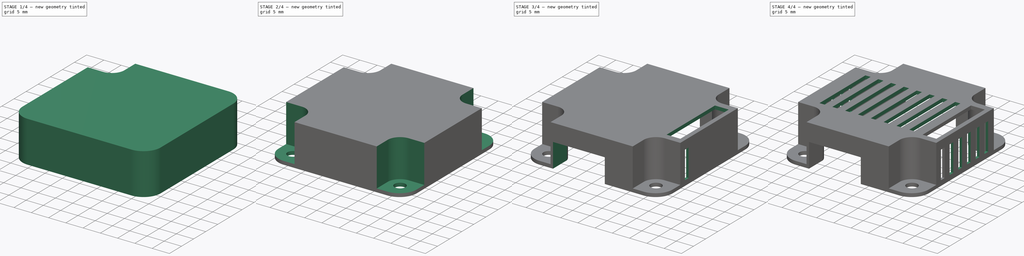
[diagram: build sequence overview — one tinted view per stage of 4, left to right]
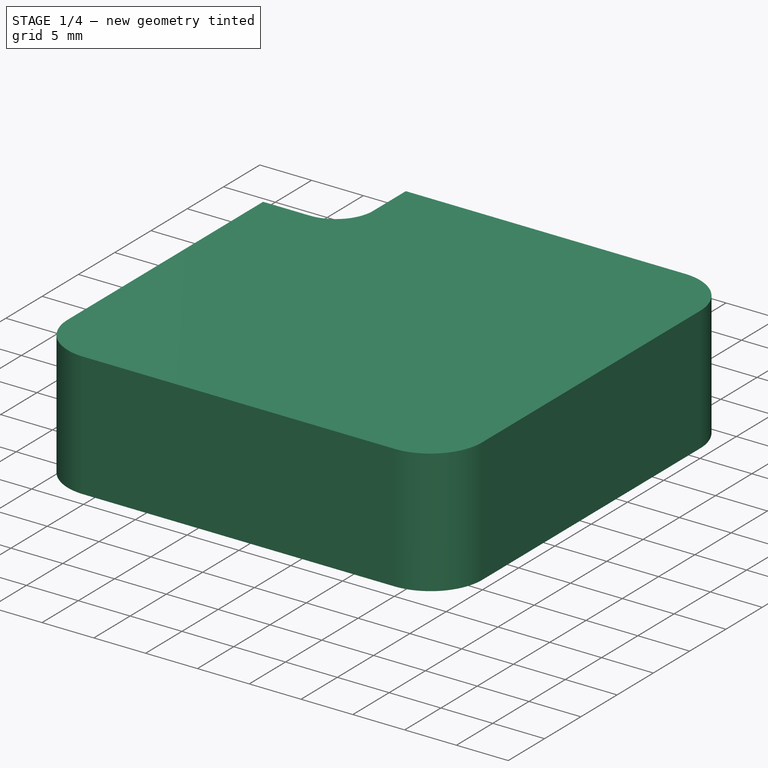
[diagram: stage 1 of 4 — iso view after this stage's code; geometry added in this stage tinted green]
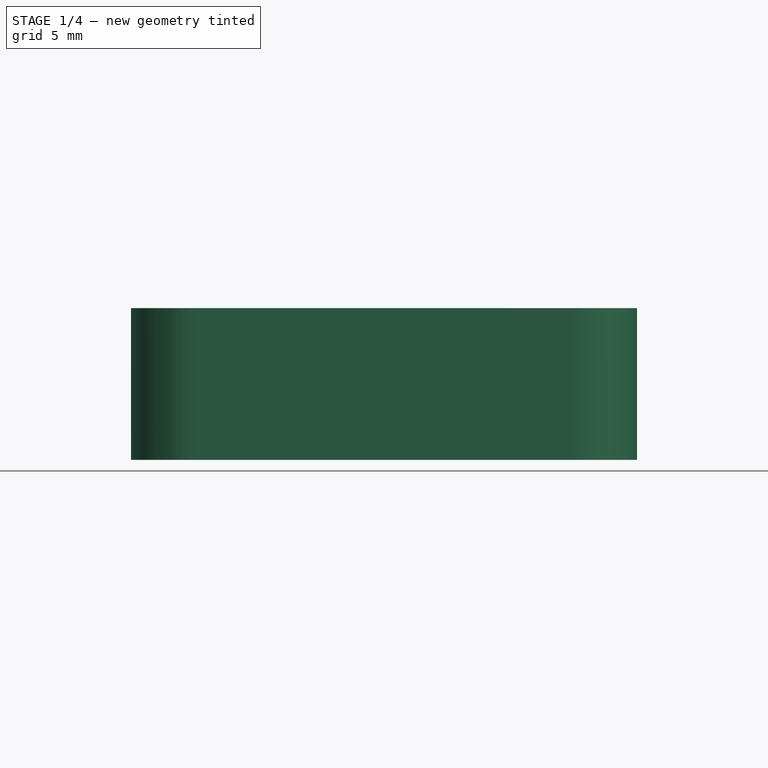
[diagram: stage 1 of 4 — front view after this stage's code; geometry added in this stage tinted green]
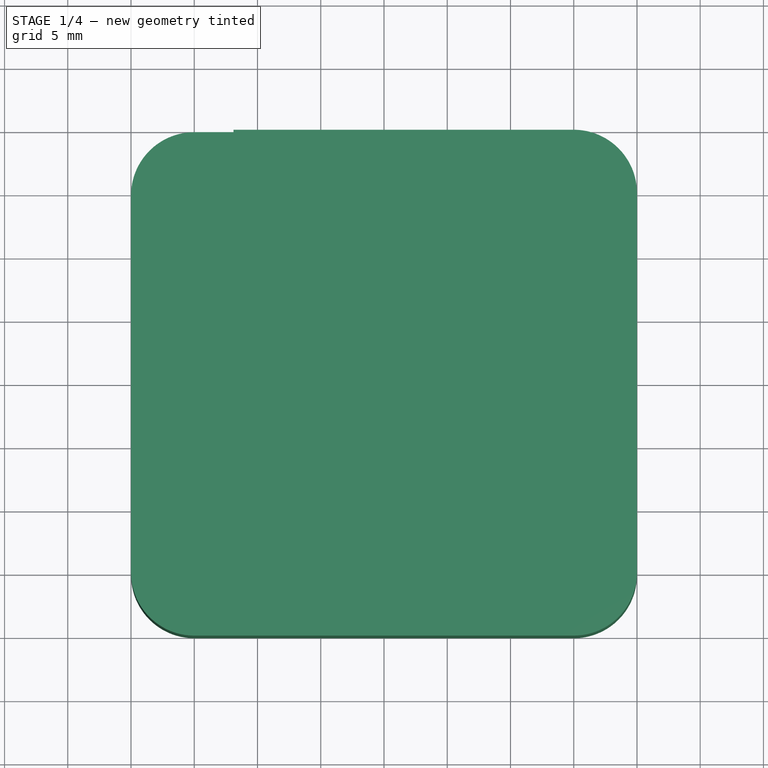
[diagram: stage 1 of 4 — top view after this stage's code; geometry added in this stage tinted green]
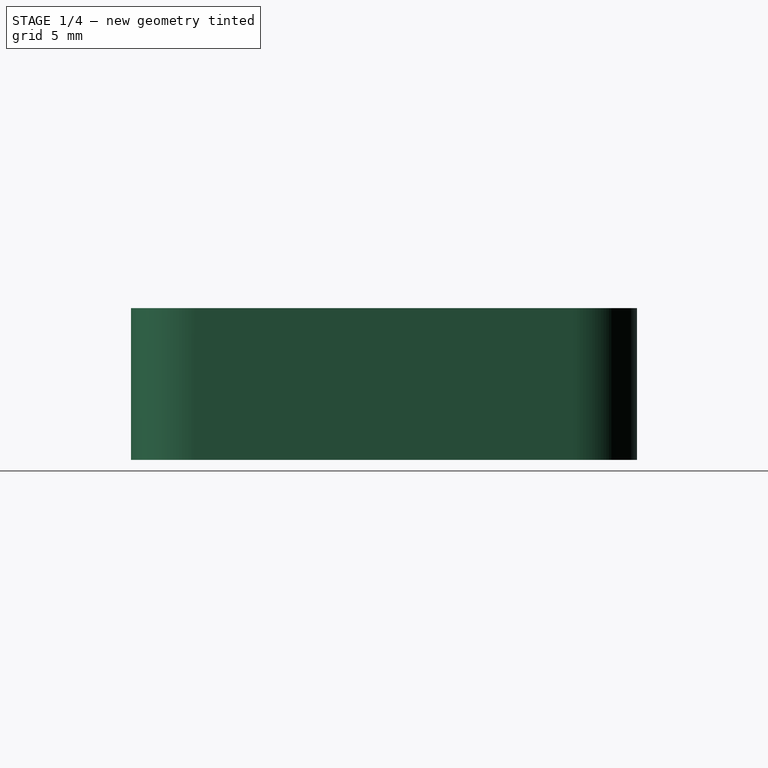
[diagram: stage 1 of 4 — right view after this stage's code; geometry added in this stage tinted green]
FCSTD DOCUMENT  (FreeCAD 0.20R29177 (Git))
Label: shell
License: All rights reserved
LicenseURL: http://en.wikipedia.org/wiki/All_rights_reserved
objects: Sketcher::SketchObject×8, PartDesign::Pocket×7, PartDesign::PolarPattern×2, PartDesign::LinearPattern×2, PartDesign::Pad×1, PartDesign::Body×1
note: 29 computed .brp shape members not serialized (recipe doc carries the construction recipe); baked Part::Feature solids carry a one-line shape summary decoded from their .brp

FEATURE [Sketcher::SketchObject] Sketch
  FullyConstrained = true
  MapMode = 5
  Support = -> [XY_Plane]
  sketch-geometry (10):
    g0: LineSegment StartX=-15 StartY=20 StartZ=0 EndX=15 EndY=20 EndZ=0
    g1: LineSegment StartX=20 StartY=15 StartZ=0 EndX=20 EndY=-15 EndZ=0
    g2: LineSegment StartX=15 StartY=-20 StartZ=0 EndX=-15 EndY=-20 EndZ=0
    g3: LineSegment StartX=-20 StartY=-15 StartZ=0 EndX=-20 EndY=15 EndZ=0
    g4: GeomPoint X=0 Y=20 Z=0
    g5: GeomPoint X=20 Y=0 Z=0
    g6: ArcOfCircle CenterX=-15 CenterY=15 CenterZ=0 NormalX=0 NormalY=0 NormalZ=1 AngleXU=0 Radius=5 StartAngle=1.5708 EndAngle=3.14159
    g7: ArcOfCircle CenterX=15 CenterY=15 CenterZ=0 NormalX=0 NormalY=0 NormalZ=1 AngleXU=0 Radius=5 StartAngle=-2.31e-14 EndAngle=1.5708
    g8: ArcOfCircle CenterX=15 CenterY=-15 CenterZ=0 NormalX=0 NormalY=0 NormalZ=1 AngleXU=0 Radius=5 StartAngle=4.71239 EndAngle=6.28319
    g9: ArcOfCircle CenterX=-15 CenterY=-15 CenterZ=0 NormalX=0 NormalY=0 NormalZ=1 AngleXU=0 Radius=5 StartAngle=3.14159 EndAngle=4.71239
  constraints (22):
    c: Horizontal(g0)
    c: Horizontal(g2)
    c: Vertical(g1)
    c: Vertical(g3)
    c: PointOnObject(g4,g-2)
    c: PointOnObject(g5,g-1)
    c: Tangent(g0,g6) = 1.5708
    c: Tangent(g3,g6) = 1.5708
    c: Tangent(g0,g7) = 1.5708
    c: Tangent(g1,g7) = 1.5708
    c: Tangent(g1,g8) = 1.5708
    c: Tangent(g2,g8) = 1.5708
    c: Tangent(g3,g9) = 1.5708
    c: Tangent(g2,g9) = 1.5708
    c: Equal(g6,g7)
    c: Equal(g7,g8)
    c: Equal(g8,g9)
    c: Symmetric(g0,g0,g4)
    c: Symmetric(g1,g1,g5)
    c: Distance(g4,g2) = 40
    c: Distance(g5,g3) = 40
    c: Radius(g6) = 5
FEATURE [PartDesign::Pad] Pad  label="outer"
  Direction = (0,0,1)
  Length = 12
  Length2 = 10
  Profile = -> Sketch
  ReferenceAxis = -> Sketch [N_Axis]
  Type = 0
FEATURE [Sketcher::SketchObject] Sketch001
  ExternalGeometry = -> [Pad]
  FullyConstrained = true
  MapMode = 5
  Placement = pos=(0,0,0) rot=(1,0,0;3.14159rad)
  Support = -> [Pad]
  sketch-geometry (16):
    g0: ArcOfCircle CenterX=-15.5 CenterY=15.5 CenterZ=0 NormalX=0 NormalY=0 NormalZ=1 AngleXU=0 Radius=4.5 StartAngle=4.71239 EndAngle=6.28319
    g1: ArcOfCircle CenterX=15.5 CenterY=15.5 CenterZ=0 NormalX=0 NormalY=0 NormalZ=1 AngleXU=0 Radius=4.5 StartAngle=3.14159 EndAngle=4.71239
    g2: ArcOfCircle CenterX=-15.5 CenterY=-15.5 CenterZ=0 NormalX=0 NormalY=0 NormalZ=1 AngleXU=0 Radius=4.5 StartAngle=0 EndAngle=1.5708
    g3: ArcOfCircle CenterX=15.5 CenterY=-15.5 CenterZ=0 NormalX=0 NormalY=0 NormalZ=1 AngleXU=0 Radius=4.5 StartAngle=1.5708 EndAngle=3.14159
    g4: LineSegment StartX=-11 StartY=19.3 StartZ=0 EndX=11 EndY=19.3 EndZ=0
    g5: LineSegment StartX=11 StartY=19.3 StartZ=0 EndX=11 EndY=15.5 EndZ=0
    g6: LineSegment StartX=-19.3 StartY=11 StartZ=0 EndX=-15.5 EndY=11 EndZ=0
    g7: LineSegment StartX=19.3 StartY=-11 StartZ=0 EndX=15.5 EndY=-11 EndZ=0
    g8: LineSegment StartX=-11 StartY=-19.3 StartZ=0 EndX=11 EndY=-19.3 EndZ=0
    g9: LineSegment StartX=11 StartY=-15.5 StartZ=0 EndX=11 EndY=-19.3 EndZ=0
    g10: LineSegment StartX=-19.3 StartY=11 StartZ=0 EndX=-19.3 EndY=-11 EndZ=0
    g11: LineSegment StartX=-19.3 StartY=-11 StartZ=0 EndX=-15.5 EndY=-11 EndZ=0
    g12: LineSegment StartX=-11 StartY=-15.5 StartZ=0 EndX=-11 EndY=-19.3 EndZ=0
    g13: LineSegment StartX=19.3 StartY=11 StartZ=0 EndX=19.3 EndY=-11 EndZ=0
    g14: LineSegment StartX=15.5 StartY=11 StartZ=0 EndX=19.3 EndY=11 EndZ=0
    g15: LineSegment StartX=-11 StartY=15.5 StartZ=0 EndX=-11 EndY=19.3 EndZ=0
  constraints (41):
    c: Coincident(g15,g4)
    c: Coincident(g4,g5)
    c: Coincident(g14,g13)
    c: Coincident(g13,g7)
    c: Coincident(g12,g8)
    c: Coincident(g11,g10)
    c: Coincident(g10,g6)
    c: Equal(g0,g1)
    c: Equal(g1,g2)
    c: Equal(g2,g3)
    c: Radius(g0) = 4.5
    c: Horizontal(g4)
    c: Vertical(g15)
    c: Vertical(g5)
    c: Horizontal(g14)
    c: Vertical(g13)
    c: Horizontal(g6)
    c: Vertical(g10)
    c: Horizontal(g11)
    c: Vertical(g12)
    c: Horizontal(g8)
    c: Vertical(g9)
    c: Coincident(g9,g8)
    c: Horizontal(g7)
    c: Distance(g4,g-3) = 0.7
    c: Distance(g13,g-4) = 0.7
    c: Distance(g8,g-6) = 0.7
    c: Distance(g6,g-5) = 0.7
    c: DistanceX(g-2,g0) = -15.5
    c: DistanceY(g-1,g0) = 15.5
    c: Symmetric(g1,g0,g-2)
    c: Symmetric(g2,g0,g-1)
    c: Symmetric(g3,g1,g-1)
    c: Tangent(g0,g15) = -1.5708
    c: Tangent(g6,g0) = -1.5708
    c: Tangent(g2,g11) = 1.5708
    c: Tangent(g12,g2) = 1.5708
    c: Tangent(g3,g9) = -1.5708
    c: Tangent(g7,g3) = -1.5708
    c: Tangent(g1,g14) = -1.5708
    c: Tangent(g5,g1) = -1.5708
FEATURE [PartDesign::Pocket] Pocket
  BaseFeature = -> Pad
  Direction = (0,0,1)
  Length = 11
  Length2 = 5
  Profile = -> Sketch001
  ReferenceAxis = -> Sketch001 [N_Axis]
  Type = 0
  expr: Length = <<outer>>.Length - 1mm
FEATURE [Sketcher::SketchObject] Sketch002
  FullyConstrained = false
  MapMode = 5
  Placement = pos=(0,0,12) rot=(0,0,1;0rad)
  Support = -> [Pocket]
  sketch-geometry (5):
    g0: ArcOfCircle CenterX=-15.5 CenterY=15.5 CenterZ=0 NormalX=0 NormalY=0 NormalZ=1 AngleXU=0 Radius=3.6 StartAngle=4.71239 EndAngle=6.28319
    g1: LineSegment StartX=-20.9455 StartY=20.6544 StartZ=0 EndX=-11.9 EndY=20.6544 EndZ=0
    g2: LineSegment StartX=-11.9 StartY=20.6544 StartZ=0 EndX=-11.9 EndY=15.5 EndZ=0
    g3: LineSegment StartX=-15.5 StartY=11.9 StartZ=0 EndX=-20.9455 EndY=11.9 EndZ=0
    g4: LineSegment StartX=-20.9455 StartY=11.9 StartZ=0 EndX=-20.9455 EndY=20.6544 EndZ=0
  constraints (12):
    c: Radius(g0) = 3.6
    c: DistanceX(g-2,g0) = -15.5
    c: DistanceY(g-1,g0) = 15.5
    c: Coincident(g1,g2)
    c: Coincident(g3,g4)
    c: Coincident(g4,g1)
    c: Horizontal(g1)
    c: Horizontal(g3)
    c: Vertical(g2)
    c: Vertical(g4)
    c: Tangent(g0,g2) = 1.5708
    c: Tangent(g0,g3) = 1.5708
FEATURE [PartDesign::Pocket] Pocket001
  BaseFeature = -> Pocket
  Direction = (0,0,-1)
  Length = 11
  Length2 = 5
  Profile = -> Sketch002
  ReferenceAxis = -> Sketch002 [N_Axis]
  Type = 0
  expr: Length = <<outer>>.Length - 1mm
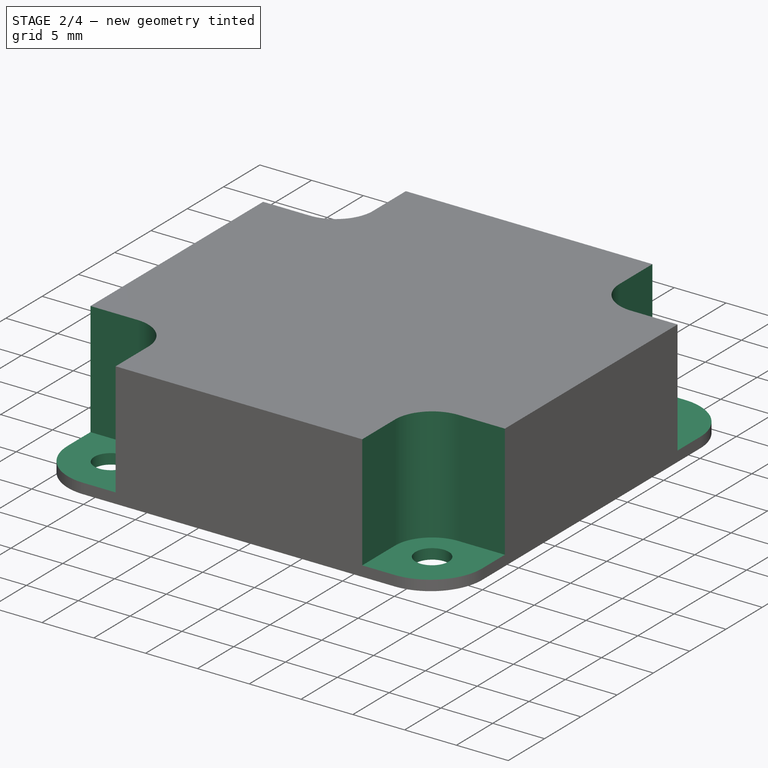
[diagram: stage 2 of 4 — iso view after this stage's code; geometry added in this stage tinted green]
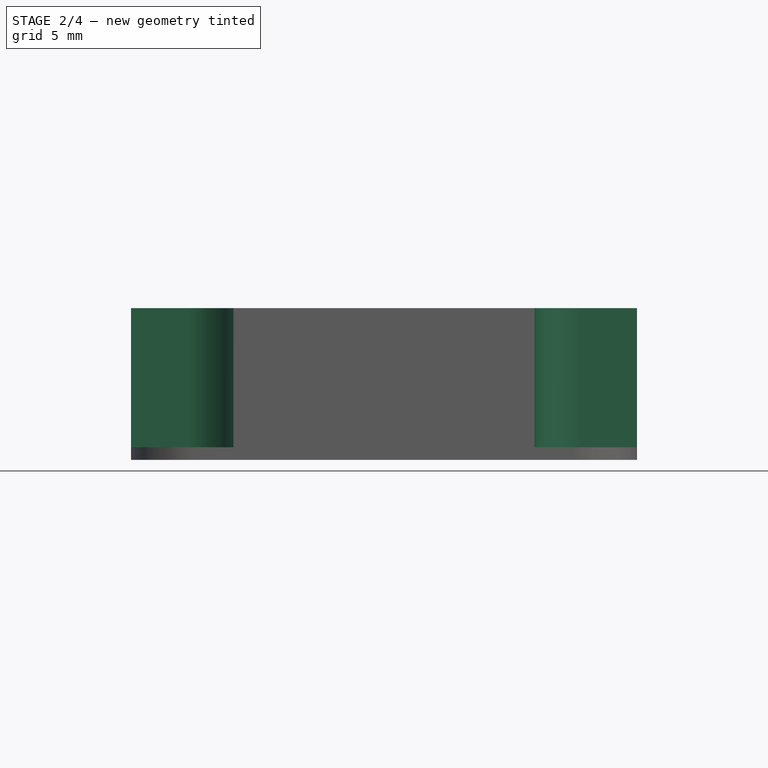
[diagram: stage 2 of 4 — front view after this stage's code; geometry added in this stage tinted green]
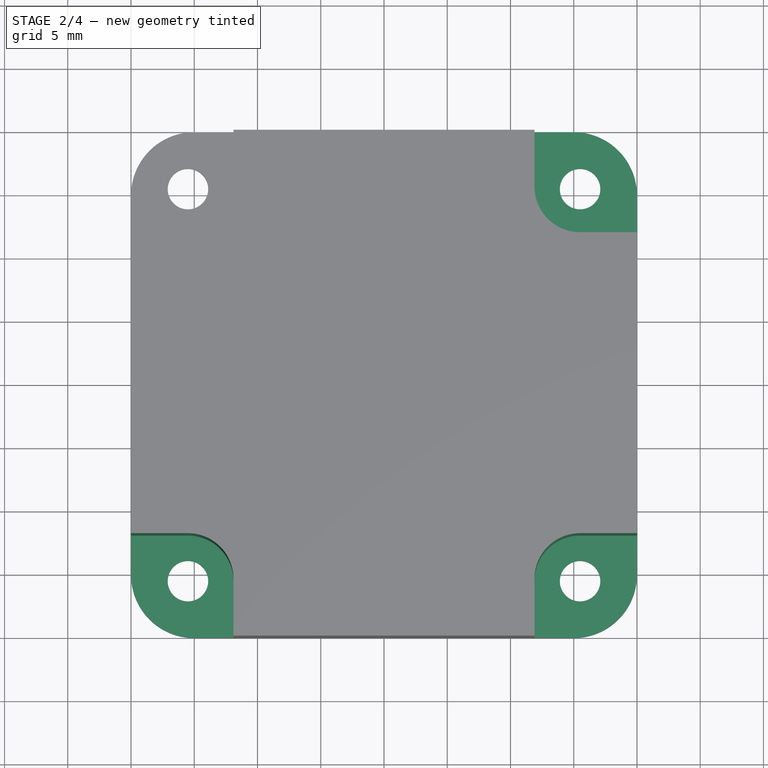
[diagram: stage 2 of 4 — top view after this stage's code; geometry added in this stage tinted green]
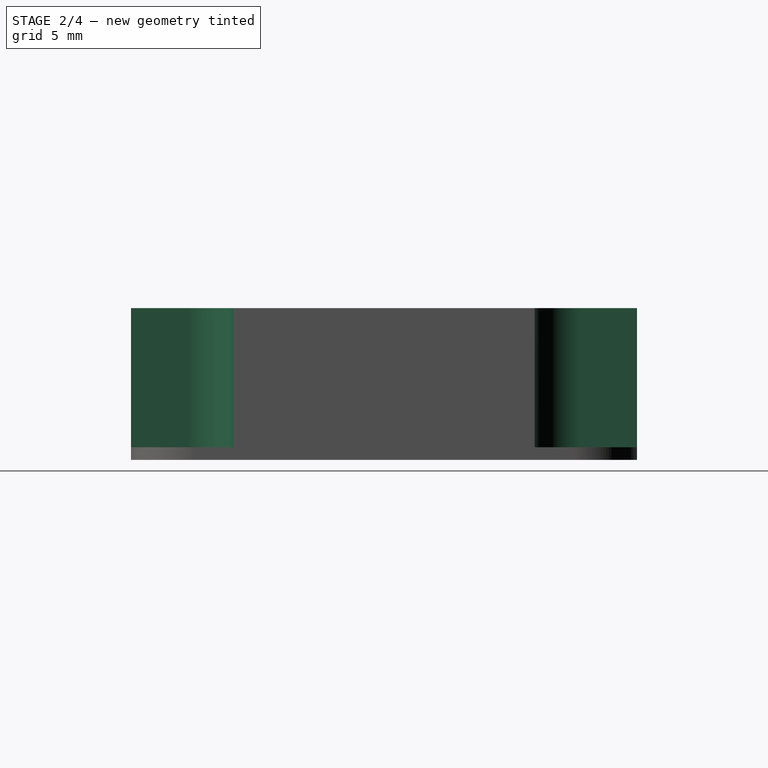
[diagram: stage 2 of 4 — right view after this stage's code; geometry added in this stage tinted green]
FEATURE [PartDesign::PolarPattern] PolarPattern
  Angle = 360
  Axis = -> Sketch002 [N_Axis]
  BaseFeature = -> Pocket001
  Occurrences = 4
  Originals = -> [Pocket001]
FEATURE [Sketcher::SketchObject] Sketch003
  FullyConstrained = true
  MapMode = 5
  Placement = pos=(0,0,0) rot=(1,0,0;3.14159rad)
  Support = -> [PolarPattern]
  sketch-geometry (1):
    g0: Circle CenterX=-15.5 CenterY=15.5 CenterZ=0 NormalX=0 NormalY=0 NormalZ=1 AngleXU=0 Radius=1.6
  constraints (3):
    c: Radius(g0) = 1.6
    c: DistanceX(g-2,g0) = -15.5
    c: DistanceY(g-1,g0) = 15.5
FEATURE [PartDesign::Pocket] Pocket002
  BaseFeature = -> PolarPattern
  Direction = (0,0,1)
  Length = 0
  Length2 = 5
  Profile = -> Sketch003
  ReferenceAxis = -> Sketch003 [N_Axis]
  Type = 1
FEATURE [PartDesign::PolarPattern] PolarPattern001
  Angle = 360
  Axis = -> Sketch003 [N_Axis]
  BaseFeature = -> Pocket002
  Occurrences = 4
  Originals = -> [Pocket002]
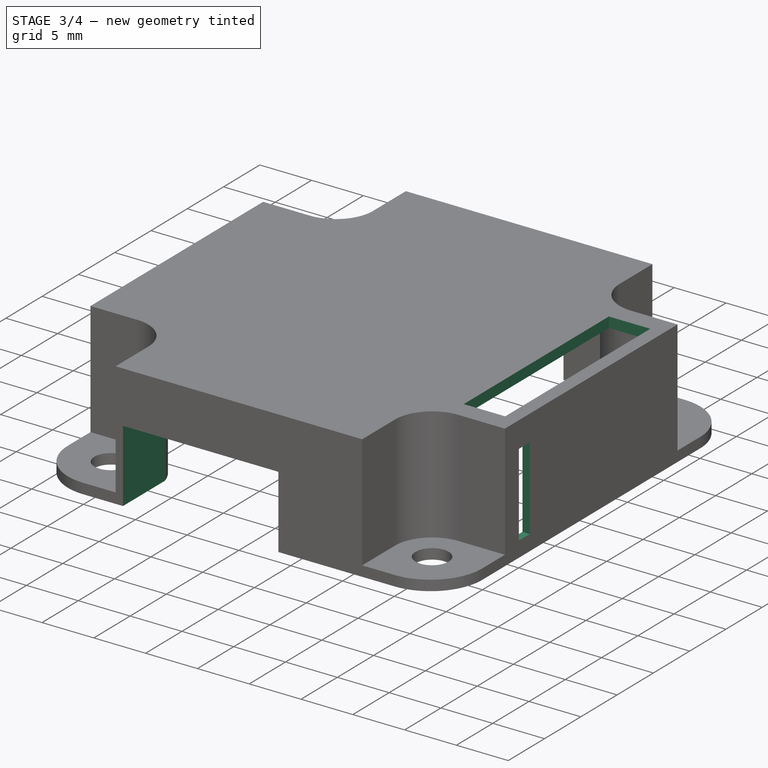
[diagram: stage 3 of 4 — iso view after this stage's code; geometry added in this stage tinted green]
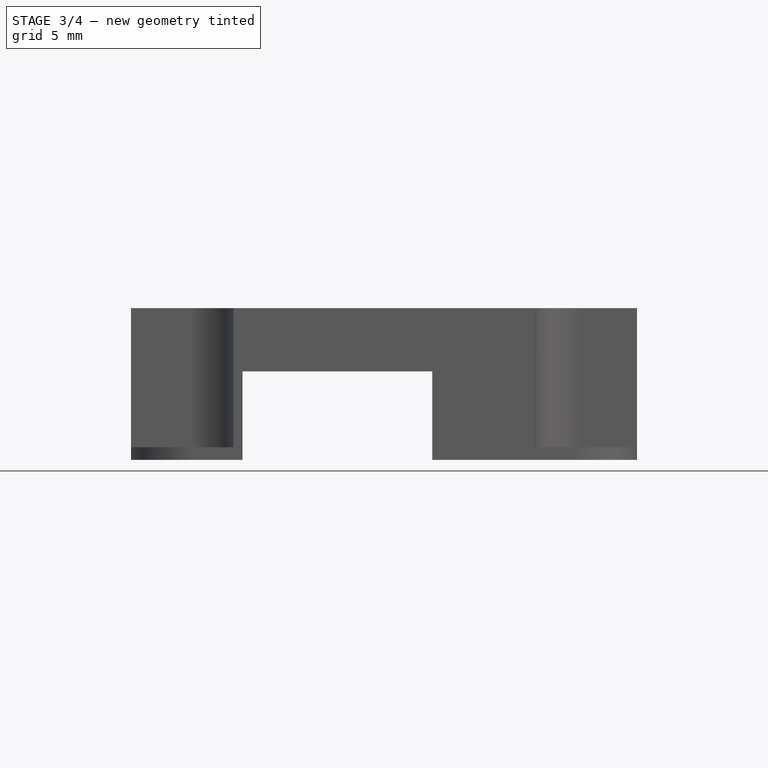
[diagram: stage 3 of 4 — front view after this stage's code; geometry added in this stage tinted green]
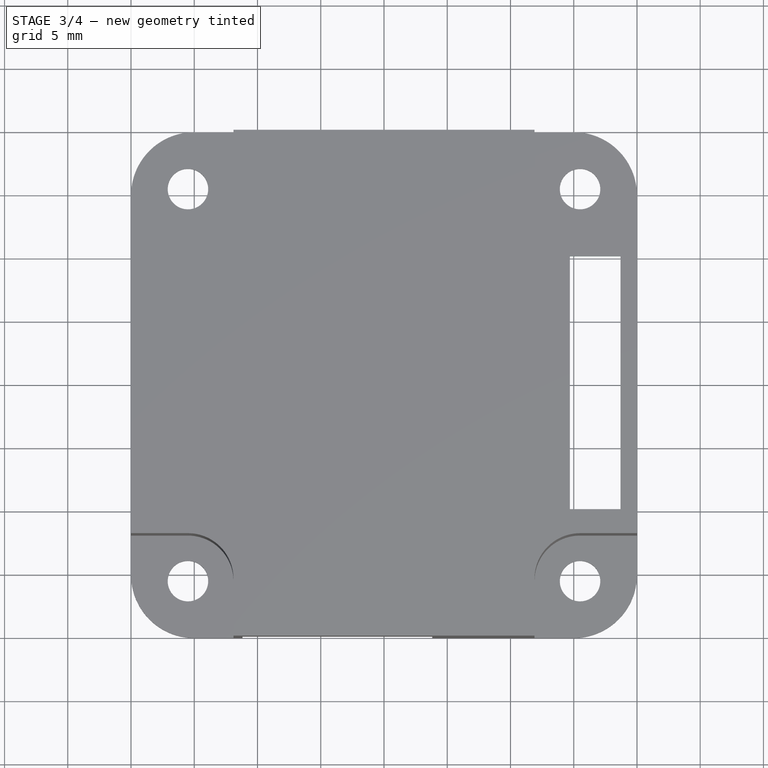
[diagram: stage 3 of 4 — top view after this stage's code; geometry added in this stage tinted green]
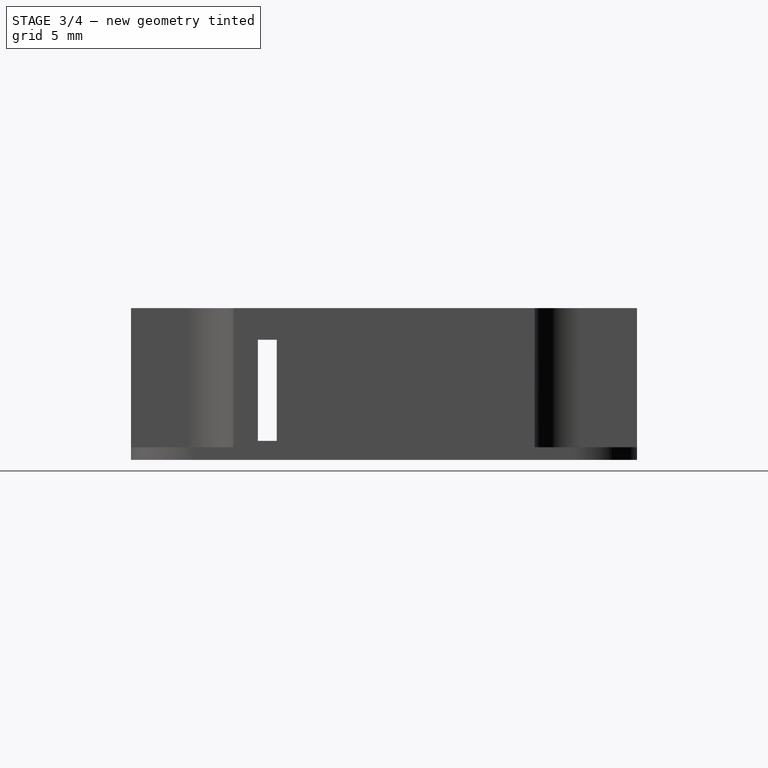
[diagram: stage 3 of 4 — right view after this stage's code; geometry added in this stage tinted green]
FEATURE [Sketcher::SketchObject] Sketch004
  FullyConstrained = true
  MapMode = 5
  Placement = pos=(0,0,12) rot=(0,0,1;0rad)
  Support = -> [PolarPattern001]
  sketch-geometry (5):
    g0: LineSegment StartX=14.7 StartY=10 StartZ=0 EndX=18.7 EndY=10 EndZ=0
    g1: LineSegment StartX=18.7 StartY=10 StartZ=0 EndX=18.7 EndY=-10 EndZ=0
    g2: LineSegment StartX=18.7 StartY=-10 StartZ=0 EndX=14.7 EndY=-10 EndZ=0
    g3: LineSegment StartX=14.7 StartY=-10 StartZ=0 EndX=14.7 EndY=10 EndZ=0
    g4: GeomPoint X=16.7 Y=10 Z=0
  constraints (12):
    c: Coincident(g0,g1)
    c: Coincident(g1,g2)
    c: Coincident(g2,g3)
    c: Coincident(g3,g0)
    c: Horizontal(g0)
    c: Horizontal(g2)
    c: Vertical(g3)
    c: Distance(g2) = 4
    c: Distance(g3) = 20
    c: Symmetric(g0,g0,g4)
    c: DistanceX(g-2,g4) = 16.7
    c: Symmetric(g0,g1,g-1)
FEATURE [PartDesign::Pocket] Pocket003
  BaseFeature = -> PolarPattern001
  Direction = (0,0,-1)
  Length = 5
  Length2 = 5
  Profile = -> Sketch004
  ReferenceAxis = -> Sketch004 [N_Axis]
  Type = 1
FEATURE [Sketcher::SketchObject] Sketch005
  FullyConstrained = true
  MapMode = 5
  Placement = pos=(0,-20,0) rot=(1,0,0;1.5708rad)
  Support = -> [Pocket003]
  sketch-geometry (5):
    g0: LineSegment StartX=-11.189 StartY=7 StartZ=0 EndX=3.811 EndY=7 EndZ=0
    g1: LineSegment StartX=3.811 StartY=7 StartZ=0 EndX=3.811 EndY=0 EndZ=0
    g2: LineSegment StartX=3.811 StartY=0 StartZ=0 EndX=-11.189 EndY=0 EndZ=0
    g3: LineSegment StartX=-11.189 StartY=0 StartZ=0 EndX=-11.189 EndY=7 EndZ=0
    g4: GeomPoint X=-3.689 Y=7 Z=0
  constraints (13):
    c: Coincident(g0,g1)
    c: Coincident(g1,g2)
    c: Coincident(g2,g3)
    c: Coincident(g3,g0)
    c: Horizontal(g0)
    c: Horizontal(g2)
    c: Vertical(g1)
    c: Vertical(g3)
    c: PointOnObject(g2,g-1)
    c: Distance(g3) = 7
    c: Distance(g0) = 15
    c: Symmetric(g0,g0,g4)
    c: DistanceX(g-2,g4) = -3.689
FEATURE [PartDesign::Pocket] Pocket004
  BaseFeature = -> Pocket003
  Direction = (0,1,-2e-16)
  Length = 1
  Length2 = 5
  Profile = -> Sketch005
  ReferenceAxis = -> Sketch005 [N_Axis]
  Type = 1
FEATURE [Sketcher::SketchObject] Sketch006
  ExternalGeometry = -> [Pocket004]
  FullyConstrained = false
  MapMode = 5
  Placement = pos=(20,0,0) rot=(0.57735,0.57735,0.57735;2.0944rad)
  Support = -> [Pocket004]
  sketch-geometry (4):
    g0: LineSegment StartX=-9.97552 StartY=9.5 StartZ=0 EndX=-8.47552 EndY=9.5 EndZ=0
    g1: LineSegment StartX=-8.47552 StartY=9.5 StartZ=0 EndX=-8.47552 EndY=1.5 EndZ=0
    g2: LineSegment StartX=-8.47552 StartY=1.5 StartZ=0 EndX=-9.97552 EndY=1.5 EndZ=0
    g3: LineSegment StartX=-9.97552 StartY=1.5 StartZ=0 EndX=-9.97552 EndY=9.5 EndZ=0
  constraints (11):
    c: Coincident(g0,g1)
    c: Coincident(g1,g2)
    c: Coincident(g2,g3)
    c: Coincident(g3,g0)
    c: Horizontal(g0)
    c: Horizontal(g2)
    c: Vertical(g1)
    c: Vertical(g3)
    c: Distance(g0) = 1.5
    c: Distance(g0,g-4) = 1.5
    c: Distance(g1,g-3) = 1.5
FEATURE [PartDesign::Pocket] Pocket005
  BaseFeature = -> Pocket004
  Direction = (-1,0,0)
  Length = 5
  Length2 = 5
  Profile = -> Sketch006
  ReferenceAxis = -> Sketch006 [N_Axis]
  Type = 1
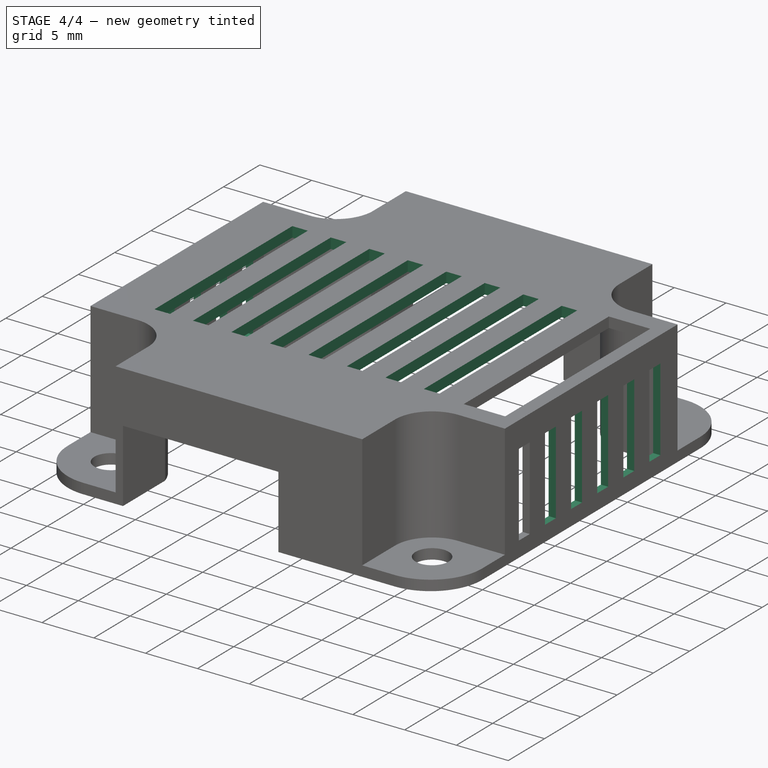
[diagram: stage 4 of 4 — iso view after this stage's code; geometry added in this stage tinted green]
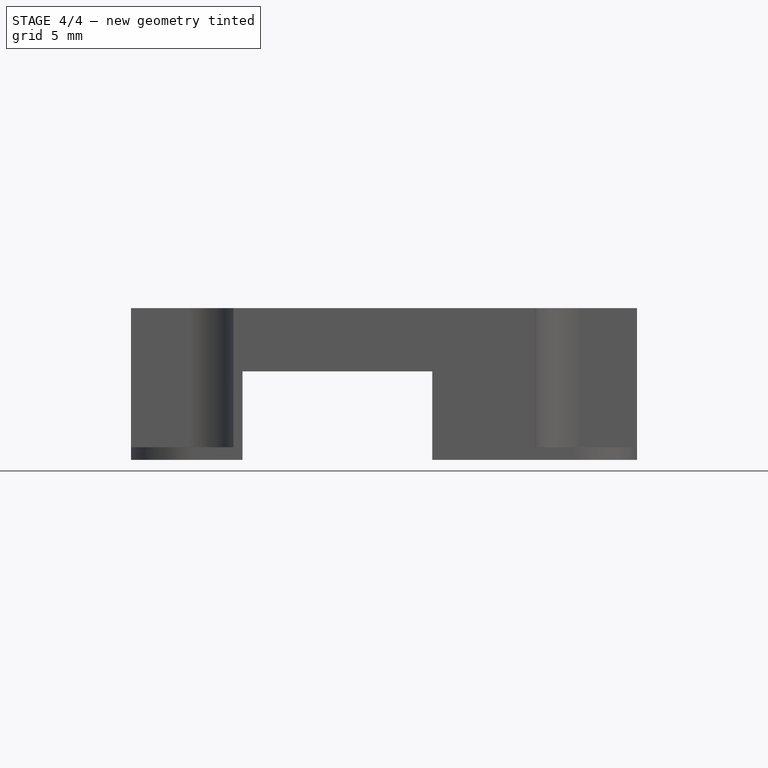
[diagram: stage 4 of 4 — front view after this stage's code; geometry added in this stage tinted green]
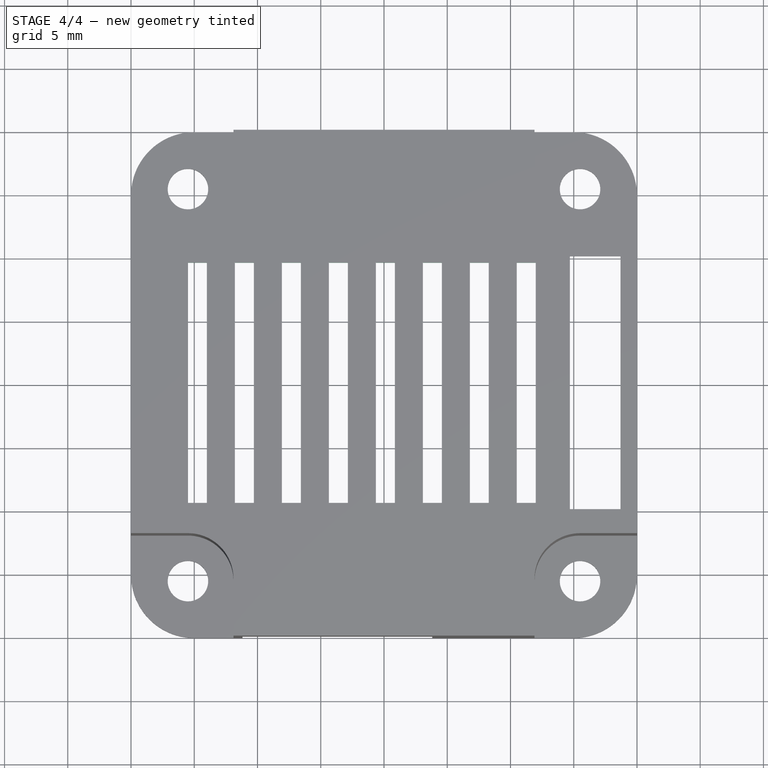
[diagram: stage 4 of 4 — top view after this stage's code; geometry added in this stage tinted green]
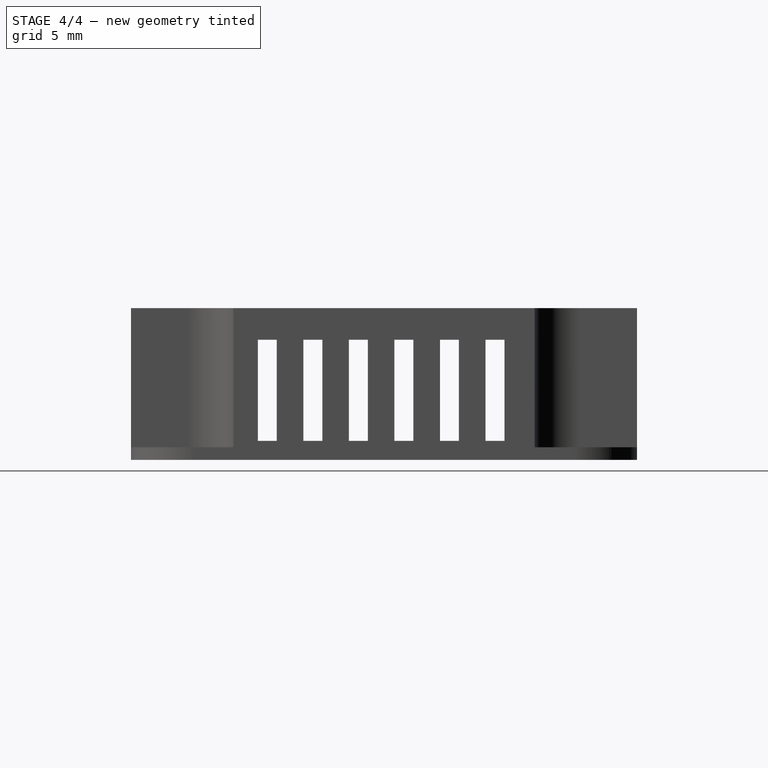
[diagram: stage 4 of 4 — right view after this stage's code; geometry added in this stage tinted green]
FEATURE [PartDesign::LinearPattern] LinearPattern
  BaseFeature = -> Pocket005
  Direction = -> Sketch006 [H_Axis]
  Length = 18
  Occurrences = 6
  Originals = -> [Pocket005]
FEATURE [Sketcher::SketchObject] Sketch007
  FullyConstrained = true
  MapMode = 5
  Placement = pos=(0,0,12) rot=(0,0,1;0rad)
  Support = -> [LinearPattern]
  sketch-geometry (4):
    g0: LineSegment StartX=-15.5 StartY=9.5 StartZ=0 EndX=-14 EndY=9.5 EndZ=0
    g1: LineSegment StartX=-14 StartY=9.5 StartZ=0 EndX=-14 EndY=-9.5 EndZ=0
    g2: LineSegment StartX=-14 StartY=-9.5 StartZ=0 EndX=-15.5 EndY=-9.5 EndZ=0
    g3: LineSegment StartX=-15.5 StartY=-9.5 StartZ=0 EndX=-15.5 EndY=9.5 EndZ=0
  constraints (11):
    c: Coincident(g0,g1)
    c: Coincident(g1,g2)
    c: Coincident(g2,g3)
    c: Coincident(g3,g0)
    c: Horizontal(g0)
    c: Horizontal(g2)
    c: Vertical(g3)
    c: Distance(g0) = 1.5
    c: Symmetric(g1,g0,g-1)
    c: Distance(g3) = 19
    c: DistanceX(g-2,g0) = -14
FEATURE [PartDesign::Pocket] Pocket006
  BaseFeature = -> LinearPattern
  Direction = (0,0,-1)
  Length = 5
  Length2 = 5
  Profile = -> Sketch007
  ReferenceAxis = -> Sketch007 [N_Axis]
  Type = 1
FEATURE [PartDesign::LinearPattern] LinearPattern001
  BaseFeature = -> Pocket006
  Direction = -> Sketch007 [H_Axis]
  Length = 26
  Occurrences = 8
  Originals = -> [Pocket006]
FEATURE [PartDesign::Body] Body
  Group = -> [Sketch,Pad,Sketch001,Pocket,Sketch002,Pocket001,PolarPattern,Sketch003,Pocket002,PolarPattern001,Sketch004,Pocket003,Sketch005,Pocket004,Sketch006,Pocket005,LinearPattern,Sketch007,Pocket006,LinearPattern001]
  Origin = -> Origin
  Tip = -> LinearPattern001
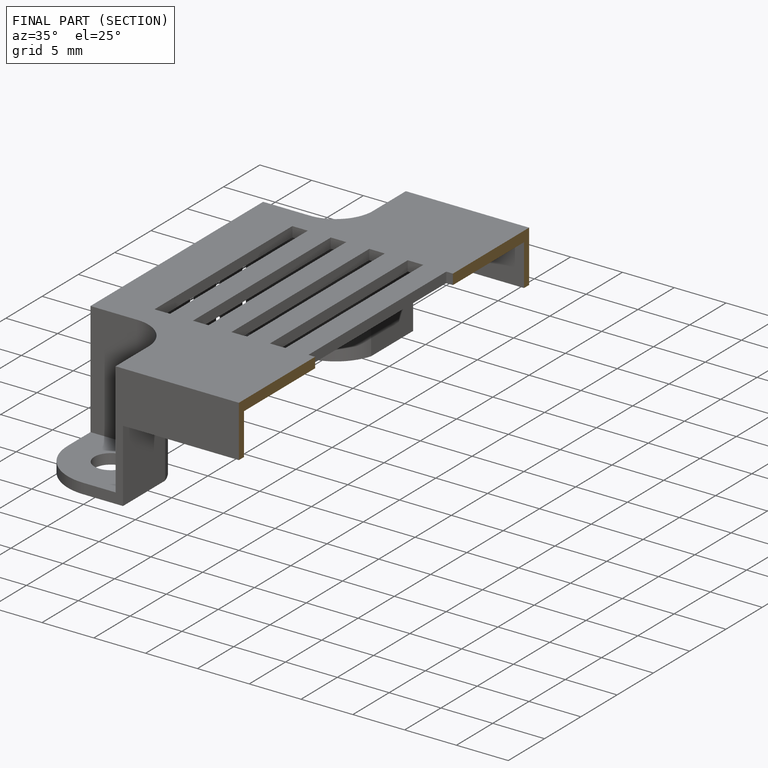
[diagram: finished part — half-section view (interior)]
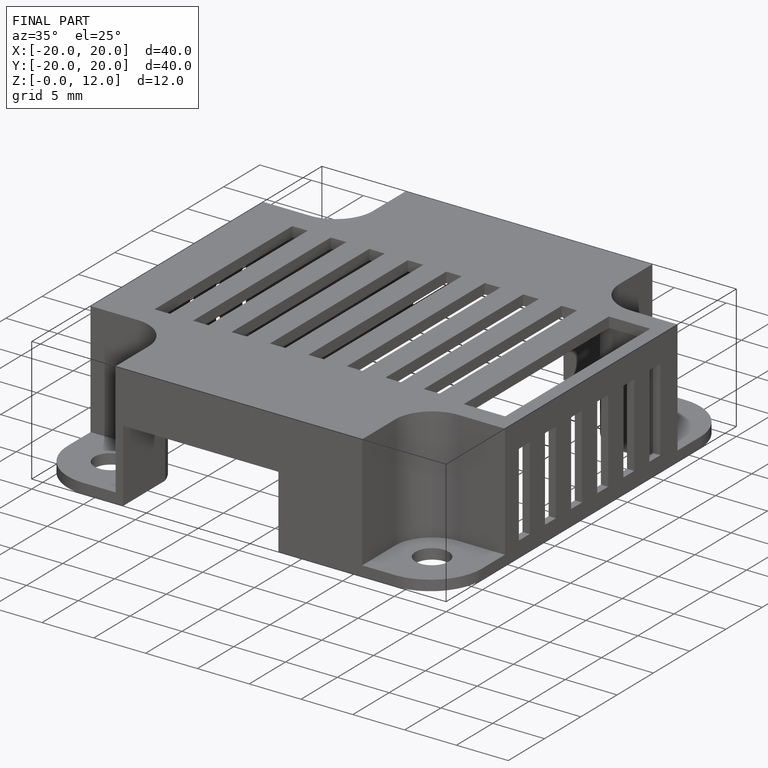
[diagram: finished part — iso view with bounding-box wireframe]
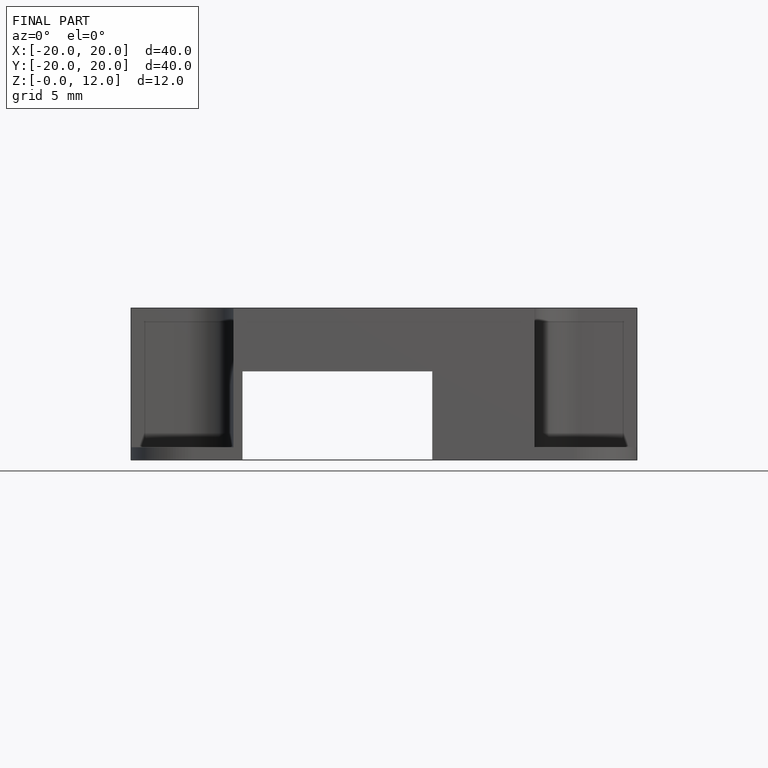
[diagram: finished part — front view with bounding-box wireframe]
